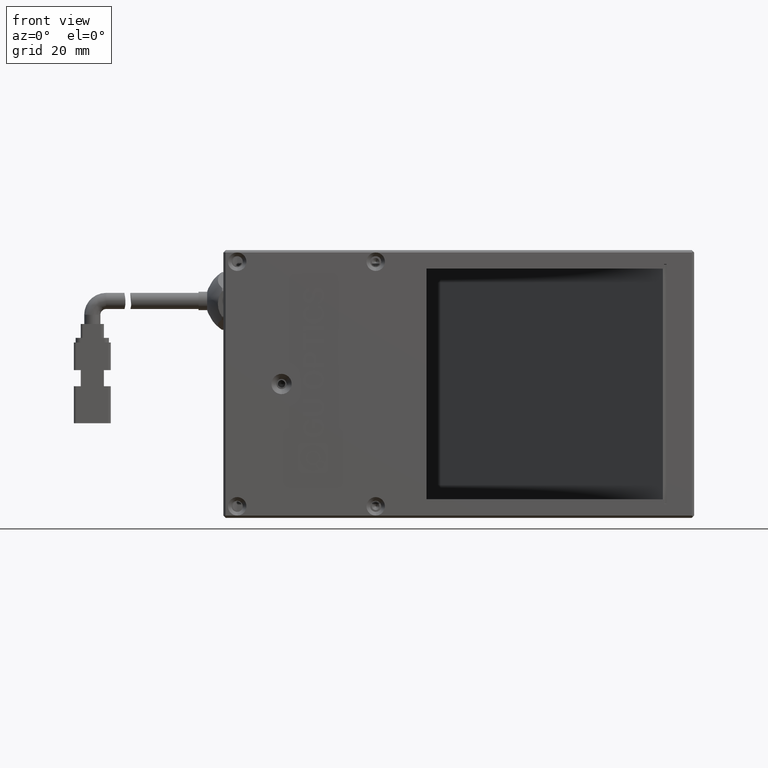
[diagram: clean part render]
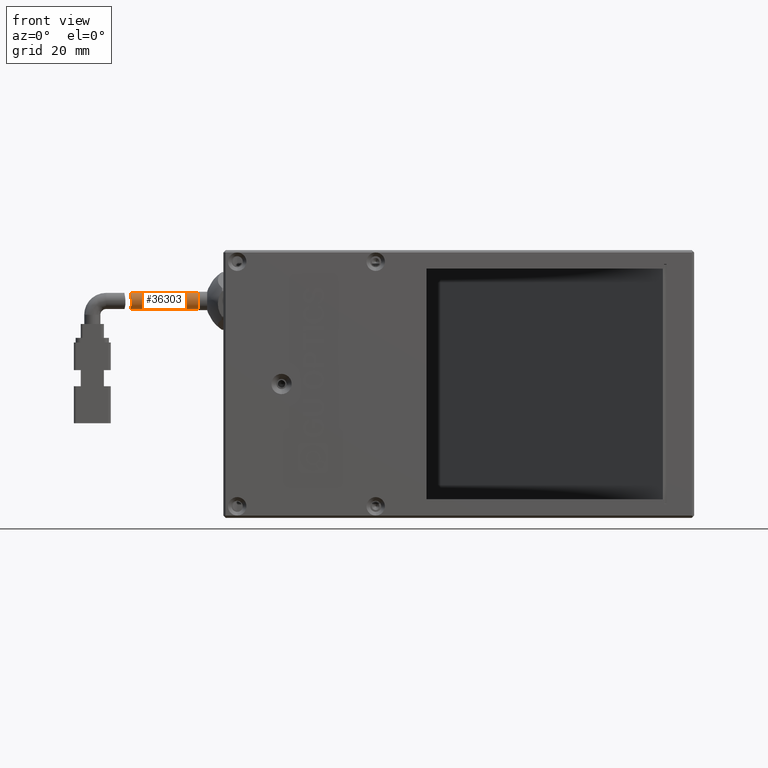
[diagram: same view with one face highlighted and labeled with its STEP entity id]
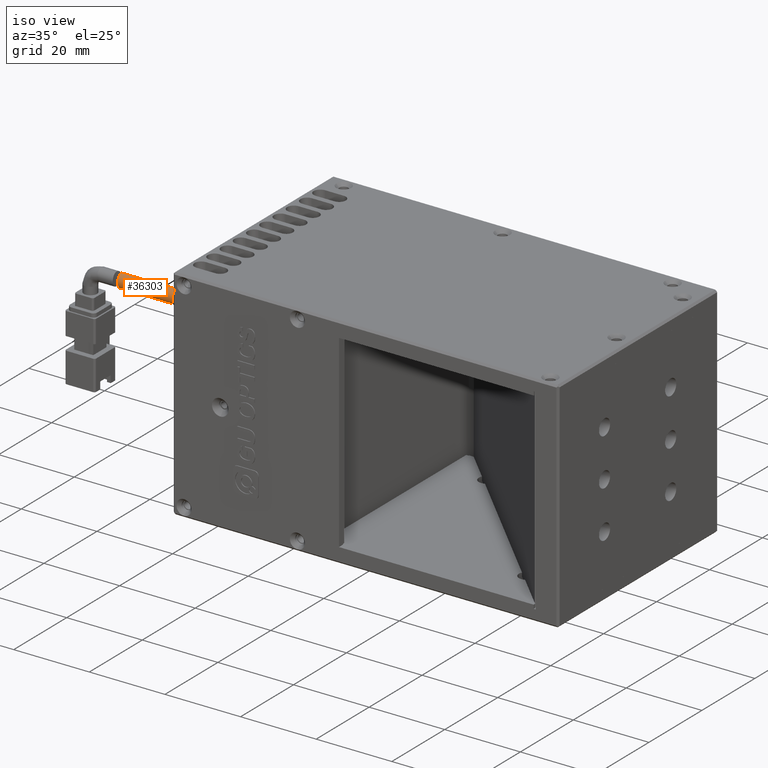
[diagram: same view with one face highlighted and labeled with its STEP entity id]
A machine part, front view. The second image highlights one B-rep face of the part: STEP entity #36303.
A second angle (iso view) of the same face is appended — the face is thin or edge-on in the first view.
In plain terms, the highlighted cylindrical surface (edge-blend (fillet) strip) has radius 1.75 mm, axis along (1, 0, 0).
Its self-contained STEP definition (entity closure, byte-faithful):
#140 = CARTESIAN_POINT ( 'NONE',  ( -88.54568608247686300, 0.2471986526003675200, 46.11781605553690600 ) ) ;
#948 = LINE ( 'NONE', #5277, #68077 ) ;
#1225 = EDGE_CURVE ( 'NONE', #67621, #35136, #948, .T. ) ;
#2025 = AXIS2_PLACEMENT_3D ( 'NONE', #24420, #19108, #45840 ) ;
#3842 = ORIENTED_EDGE ( 'NONE', *, *, #1225, .T. ) ;
#5232 = CARTESIAN_POINT ( 'NONE',  ( -88.70978760711557200, 0.8978203733747932600, 48.51801841452582700 ) ) ;
#5277 = CARTESIAN_POINT ( 'NONE',  ( -93.97424922391157100, 1.775993330902716000, 45.25000000000893200 ) ) ;
#5449 = CARTESIAN_POINT ( 'NONE',  ( -88.61232753356546300, 0.6197220144447569400, 45.68139841768878300 ) ) ;
#8610 = AXIS2_PLACEMENT_3D ( 'NONE', #16496, #53592, #21805 ) ;
#10547 = CARTESIAN_POINT ( 'NONE',  ( -88.67347887741689800, 0.6181518425266553400, 48.31713385812769700 ) ) ;
#10779 = CARTESIAN_POINT ( 'NONE',  ( -88.65518062599991800, 0.8965102491461816000, 45.48278611238213600 ) ) ;
#13444 = VECTOR ( 'NONE', #61734, 1000.000000000000000 ) ;
#13942 = CARTESIAN_POINT ( 'NONE',  ( -93.97424922391157100, 1.775993330902716300, 48.75000000000893200 ) ) ;
#14666 = ORIENTED_EDGE ( 'NONE', *, *, #19949, .T. ) ;
#15867 = CARTESIAN_POINT ( 'NONE',  ( -88.60379167720903100, 0.2470879724882492600, 47.88128311799758300 ) ) ;
#16081 = CARTESIAN_POINT ( 'NONE',  ( -88.70344065530638000, 1.315208073295726500, 45.29636896438320500 ) ) ;
#16496 = CARTESIAN_POINT ( 'NONE',  ( -73.97424922391157100, 1.775993330902716000, 47.00000000000893200 ) ) ;
#19108 = DIRECTION ( 'NONE',  ( 1.000000000000000000, 0.0000000000000000000, 0.0000000000000000000 ) ) ;
#19949 = EDGE_CURVE ( 'NONE', #49988, #67621, #63296, .T. ) ;
#21161 = CARTESIAN_POINT ( 'NONE',  ( -88.53486899505411100, 0.02627707542139369100, 47.23106191862423500 ) ) ;
#21408 = CARTESIAN_POINT ( 'NONE',  ( -88.71796866307188600, 1.775993330902716000, 45.25000000000893200 ) ) ;
#21805 = DIRECTION ( 'NONE',  ( 0.0000000000000000000, 0.0000000000000000000, -1.000000000000000000 ) ) ;
#24420 = CARTESIAN_POINT ( 'NONE',  ( -93.97424922391157100, 1.775993330902716000, 47.00000000000893200 ) ) ;
#26090 = CARTESIAN_POINT ( 'NONE',  ( -88.75508915640887200, 1.659940431381342000, 48.75000000000893200 ) ) ;
#26306 = CARTESIAN_POINT ( 'NONE',  ( -88.75508915640887200, 1.775993330902716300, 48.75000000000892400 ) ) ;
#26559 = CARTESIAN_POINT ( 'NONE',  ( -88.51952423886476100, 0.03721985981166263400, 46.77124186248057200 ) ) ;
#27465 = FACE_OUTER_BOUND ( 'NONE', #30008, .T. ) ;
#27579 = LINE ( 'NONE', #13942, #13444 ) ;
#28218 = CARTESIAN_POINT ( 'NONE',  ( -88.71796866307188600, 1.775993330902716000, 45.25000000000893200 ) ) ;
#30008 = EDGE_LOOP ( 'NONE', ( #46919, #14666, #3842, #49862 ) ) ;
#31676 = CARTESIAN_POINT ( 'NONE',  ( -88.74383224263381500, 1.321592689043296300, 48.69384090749622400 ) ) ;
#31916 = CARTESIAN_POINT ( 'NONE',  ( -88.52561923163772000, 0.1151226661819604500, 46.43675133809967500 ) ) ;
#32254 = CARTESIAN_POINT ( 'NONE',  ( -88.75508915640887200, 1.775993330902716300, 48.75000000000892400 ) ) ;
#35136 = VERTEX_POINT ( 'NONE', #60324 ) ;
#36303 = ADVANCED_FACE ( 'NONE', ( #27465 ), #49035, .T. ) ;
#37007 = CARTESIAN_POINT ( 'NONE',  ( -88.72004260009758500, 0.9982571947268422700, 48.57187567479663000 ) ) ;
#37264 = CARTESIAN_POINT ( 'NONE',  ( -88.57007949648084400, 0.3762444674709717300, 45.92487345863637000 ) ) ;
#42375 = CARTESIAN_POINT ( 'NONE',  ( -88.68653990908335100, 0.7078049153765848500, 48.39087783759264000 ) ) ;
#42610 = CARTESIAN_POINT ( 'NONE',  ( -88.62697024365076000, 0.7075763214079884300, 45.60934779125003000 ) ) ;
#44004 = EDGE_CURVE ( 'NONE', #49988, #59553, #27579, .T. ) ;
#45840 = DIRECTION ( 'NONE',  ( 0.0000000000000000000, 0.0000000000000000000, -1.000000000000000000 ) ) ;
#46919 = ORIENTED_EDGE ( 'NONE', *, *, #44004, .F. ) ;
#47675 = CARTESIAN_POINT ( 'NONE',  ( -88.63319322710073300, 0.3770099978557668900, 48.07568568062745100 ) ) ;
#47896 = CARTESIAN_POINT ( 'NONE',  ( -88.66886570368053800, 0.9988053158561638300, 45.42789178838344800 ) ) ;
#49035 = CYLINDRICAL_SURFACE ( 'NONE', #2025, 1.750000000000001600 ) ;
#49429 = EDGE_CURVE ( 'NONE', #35136, #59553, #61878, .T. ) ;
#49862 = ORIENTED_EDGE ( 'NONE', *, *, #49429, .T. ) ;
#49988 = VERTEX_POINT ( 'NONE', #32254 ) ;
#52949 = CARTESIAN_POINT ( 'NONE',  ( -88.55475612069409400, 0.07263149240240990300, 47.46126996020699100 ) ) ;
#53182 = CARTESIAN_POINT ( 'NONE',  ( -88.71796866307187200, 1.543831365002690900, 45.25000000000893900 ) ) ;
#53592 = DIRECTION ( 'NONE',  ( -1.000000000000000000, -0.0000000000000000000, -0.0000000000000000000 ) ) ;
#57841 = CARTESIAN_POINT ( 'NONE',  ( -88.75277085715923400, 1.545885178955980400, 48.73857044770648600 ) ) ;
#58313 = CARTESIAN_POINT ( 'NONE',  ( -88.52139725795747400, 0.02585345650130978900, 46.88770767496731700 ) ) ;
#58363 = DIRECTION ( 'NONE',  ( 1.000000000000000000, 0.0000000000000000000, 0.0000000000000000000 ) ) ;
#59553 = VERTEX_POINT ( 'NONE', #63073 ) ;
#60324 = CARTESIAN_POINT ( 'NONE',  ( -73.97424922391157100, 1.775993330902716000, 45.25000000000893200 ) ) ;
#61734 = DIRECTION ( 'NONE',  ( 1.000000000000000000, 0.0000000000000000000, 0.0000000000000000000 ) ) ;
#61878 = CIRCLE ( 'NONE', #8610, 1.750000000000001600 ) ;
#63073 = CARTESIAN_POINT ( 'NONE',  ( -73.97424922391157100, 1.775993330902716300, 48.75000000000893200 ) ) ;
#63296 = B_SPLINE_CURVE_WITH_KNOTS ( 'NONE', 3,
 ( #26306, #26090, #57841, #31676, #68715, #37007, #5232, #42375, #10547, #47675, #15867, #52949, #21161, #58313, #26559, #63641, #31916, #140, #37264, #5449, #42610, #10779, #47896, #16081, #53182, #21408 ),
 .UNSPECIFIED., .F., .F.,
 ( 4, 2, 2, 2, 2, 2, 2, 2, 2, 2, 2, 2, 4 ),
 ( 2.235455565251903800E-017, 0.0003431607499797126200, 0.0006863214999594029200, 0.001029482249939093300, 0.001372642999918783500, 0.002058964499878164400, 0.002745285999837544900, 0.003088446749817224300, 0.003431607499796903200, 0.004117928999756278500, 0.004461089749735965700, 0.004804250499715652000, 0.005490571999675030800 ),
 .UNSPECIFIED. ) ;
#63641 = CARTESIAN_POINT ( 'NONE',  ( -88.52167811299145200, 0.08197029803840971700, 46.54618348049838500 ) ) ;
#67621 = VERTEX_POINT ( 'NONE', #28218 ) ;
#68077 = VECTOR ( 'NONE', #58363, 1000.000000000000000 ) ;
#68715 = CARTESIAN_POINT ( 'NONE',  ( -88.73709901180511400, 1.210166589966159600, 48.65997190752550200 ) ) ;